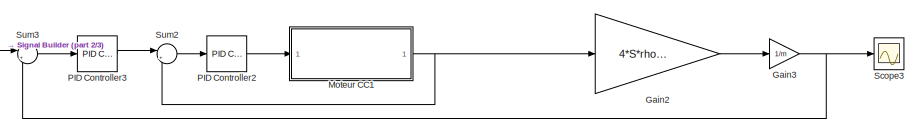
[diagram: root canvas - part 1/3, top center region]
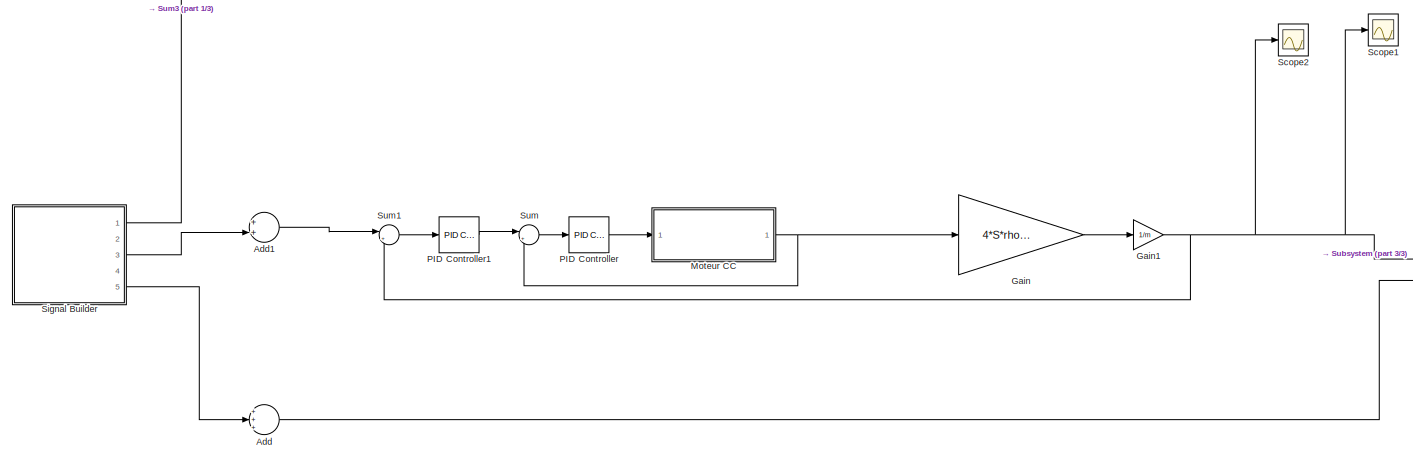
[diagram: root canvas - part 2/3, bottom center region]
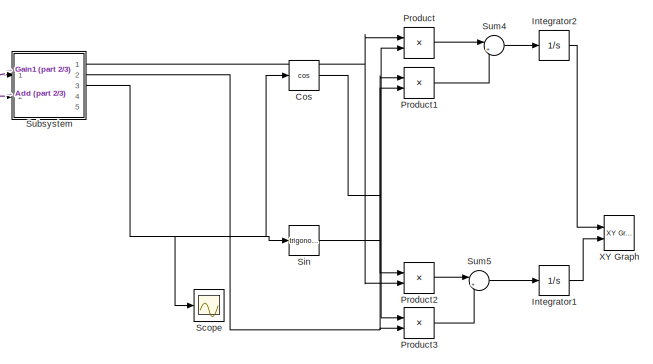
[diagram: root canvas - part 3/3, bottom right region]
MODEL slx_8b67d9d54046
KIND model
CONFIG AbsTol = auto
CONFIG EnableMultiTasking = off
CONFIG FixedStep = auto
CONFIG MaxStep = 1e-2
CONFIG MinStep = auto
CONFIG RelTol = 1e-3
CONFIG SampleTimeConstraint = Unconstrained
CONFIG Solver = VariableStepAuto
CONFIG SolverName = VariableStepAuto
CONFIG StartTime = 0.0
CONFIG StopTime = 20
BLOCK [Sum] Add
  InputSameDT = off
  Inputs = +++
  OutDataTypeStr = Inherit: Inherit via internal rule
  Ports = [3, 1]
  SaturateOnIntegerOverflow = off
BLOCK [Sum] Add1
  InputSameDT = off
  OutDataTypeStr = Inherit: Inherit via internal rule
  Ports = [2, 1]
  SaturateOnIntegerOverflow = off
BLOCK [Trigonometry] Cos
  Operator = cos
  Ports = [1, 1]
BLOCK [Gain] Gain
  Gain = 4*S*rho*L*L*Cz*3000
  OutDataTypeStr = Inherit: Inherit via internal rule
  ParamDataTypeStr = Inherit: Inherit via internal rule
  SaturateOnIntegerOverflow = off
BLOCK [Gain] Gain1
  Gain = 1/m
  OutDataTypeStr = Inherit: Inherit via internal rule
  ParamDataTypeStr = Inherit: Inherit via internal rule
  SaturateOnIntegerOverflow = off
BLOCK [Gain] Gain2
  Gain = 4*S*rho*L*L*Cz*3000
  OutDataTypeStr = Inherit: Inherit via internal rule
  ParamDataTypeStr = Inherit: Inherit via internal rule
  SaturateOnIntegerOverflow = off
BLOCK [Gain] Gain3
  Gain = 1/m
  OutDataTypeStr = Inherit: Inherit via internal rule
  ParamDataTypeStr = Inherit: Inherit via internal rule
  SaturateOnIntegerOverflow = off
BLOCK [Integrator] Integrator1
  Ports = [1, 1]
BLOCK [Integrator] Integrator2
  Ports = [1, 1]
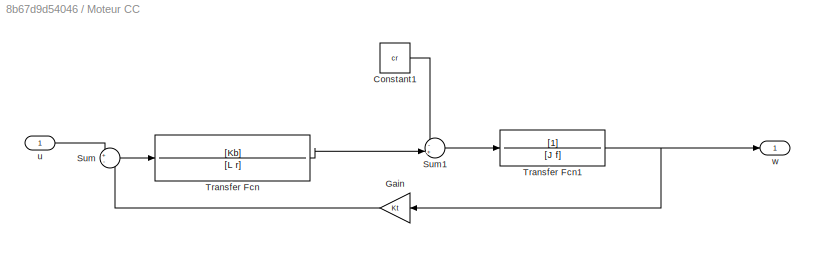
BLOCK [SubSystem] Moteur CC
  Ports = [1, 1]
  RequestExecContextInheritance = off
BLOCK [Constant] Moteur CC/Constant1
  Value = cr
BLOCK [Gain] Moteur CC/Gain
  Gain = Kt
  OutDataTypeStr = Inherit: Inherit via internal rule
  ParamDataTypeStr = Inherit: Inherit via internal rule
  SaturateOnIntegerOverflow = off
BLOCK [Sum] Moteur CC/Sum
  IconShape = round
  InputSameDT = off
  Inputs = +-
  OutDataTypeStr = Inherit: Inherit via internal rule
  Ports = [2, 1]
  SaturateOnIntegerOverflow = off
BLOCK [Sum] Moteur CC/Sum1
  IconShape = round
  InputSameDT = off
  Inputs = -+|
  OutDataTypeStr = Inherit: Inherit via internal rule
  Ports = [2, 1]
  SaturateOnIntegerOverflow = off
BLOCK [TransferFcn] Moteur CC/Transfer Fcn
  Denominator = [L r]
  Numerator = [Kb]
BLOCK [TransferFcn] Moteur CC/Transfer Fcn1
  Denominator = [J f]
BLOCK [Inport] Moteur CC/u
  IconDisplay = Port number
BLOCK [Outport] Moteur CC/w
  IconDisplay = Port number
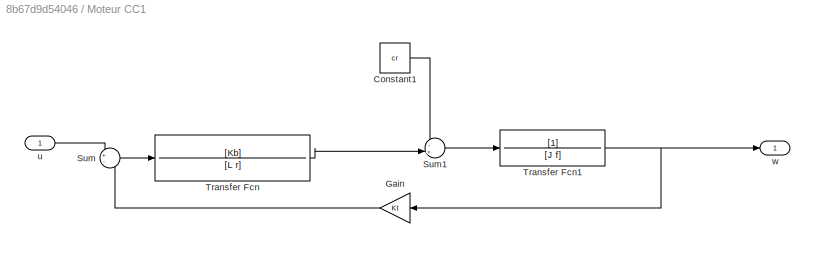
BLOCK [SubSystem] Moteur CC1
  Ports = [1, 1]
  RequestExecContextInheritance = off
BLOCK [Constant] Moteur CC1/Constant1
  Value = cr
BLOCK [Gain] Moteur CC1/Gain
  Gain = Kt
  OutDataTypeStr = Inherit: Inherit via internal rule
  ParamDataTypeStr = Inherit: Inherit via internal rule
  SaturateOnIntegerOverflow = off
BLOCK [Sum] Moteur CC1/Sum
  IconShape = round
  InputSameDT = off
  Inputs = +-
  OutDataTypeStr = Inherit: Inherit via internal rule
  Ports = [2, 1]
  SaturateOnIntegerOverflow = off
BLOCK [Sum] Moteur CC1/Sum1
  IconShape = round
  InputSameDT = off
  Inputs = -+|
  OutDataTypeStr = Inherit: Inherit via internal rule
  Ports = [2, 1]
  SaturateOnIntegerOverflow = off
BLOCK [TransferFcn] Moteur CC1/Transfer Fcn
  Denominator = [L r]
  Numerator = [Kb]
BLOCK [TransferFcn] Moteur CC1/Transfer Fcn1
  Denominator = [J f]
BLOCK [Inport] Moteur CC1/u
  IconDisplay = Port number
BLOCK [Outport] Moteur CC1/w
  IconDisplay = Port number
BLOCK [Reference] PID Controller  REF=simulink/Continuous/PID Controller
  Ports = [1, 1]
  SourceBlock = simulink/Continuous/PID Controller
  SourceProductBaseCode = SL
  SourceProductName = Simulink
  SourceType = PID 1dof
BLOCK [Reference] PID Controller1  REF=simulink/Continuous/PID Controller
  Ports = [1, 1]
  SourceBlock = simulink/Continuous/PID Controller
  SourceProductBaseCode = SL
  SourceProductName = Simulink
  SourceType = PID 1dof
BLOCK [Reference] PID Controller2  REF=simulink/Continuous/PID Controller
  Ports = [1, 1]
  SourceBlock = simulink/Continuous/PID Controller
  SourceProductBaseCode = SL
  SourceProductName = Simulink
  SourceType = PID 1dof
BLOCK [Reference] PID Controller3  REF=simulink/Continuous/PID Controller
  Ports = [1, 1]
  SourceBlock = simulink/Continuous/PID Controller
  SourceProductBaseCode = SL
  SourceProductName = Simulink
  SourceType = PID 1dof
BLOCK [Product] Product
  InputSameDT = off
  OutDataTypeStr = Inherit: Inherit via internal rule
  Ports = [2, 1]
  RndMeth = Floor
  SaturateOnIntegerOverflow = off
BLOCK [Product] Product1
  InputSameDT = off
  OutDataTypeStr = Inherit: Inherit via internal rule
  Ports = [2, 1]
  RndMeth = Floor
  SaturateOnIntegerOverflow = off
BLOCK [Product] Product2
  InputSameDT = off
  OutDataTypeStr = Inherit: Inherit via internal rule
  Ports = [2, 1]
  RndMeth = Floor
  SaturateOnIntegerOverflow = off
BLOCK [Product] Product3
  InputSameDT = off
  OutDataTypeStr = Inherit: Inherit via internal rule
  Ports = [2, 1]
  RndMeth = Floor
  SaturateOnIntegerOverflow = off
BLOCK [Scope] Scope
  Floating = off
  NumInputPorts = 1
  Ports = [1]
  ScopeSpecificationString = Simulink.scopes.TimeScopeBlockCfg('CurrentConfiguration', extmgr.ConfigurationSet(extmgr.Configuration('Core','General UI',true),extmgr.Configuration('Core','Source UI',true),extmgr.Configuration('Sources','WiredSimulink',true),extmgr.Configuration('Visuals','Time Domain',true,'SerializedDisplays',{struct('MinYLimReal','-32009.91576','MaxYLimReal','9044.22511','YLabelReal','','MinYLimMag','   0.00...<+1390ch>
BLOCK [Scope] Scope1
  Floating = off
  NumInputPorts = 1
  Ports = [1]
  ScopeSpecificationString = Simulink.scopes.TimeScopeBlockCfg('CurrentConfiguration', extmgr.ConfigurationSet(extmgr.Configuration('Core','General UI',true),extmgr.Configuration('Core','Source UI',true),extmgr.Configuration('Sources','WiredSimulink',true,'DataLoggingVariableName','ScopeData1'),extmgr.Configuration('Visuals','Time Domain',true,'SerializedDisplays',{struct('MinYLimReal','-0.12427','MaxYLimReal','0.1641','YLabe...<+1437ch>
BLOCK [Scope] Scope2
  Floating = off
  NumInputPorts = 1
  Ports = [1]
  ScopeSpecificationString = Simulink.scopes.TimeScopeBlockCfg('CurrentConfiguration', extmgr.ConfigurationSet(extmgr.Configuration('Core','General UI',true),extmgr.Configuration('Core','Source UI',true),extmgr.Configuration('Sources','WiredSimulink',true,'DataLoggingVariableName','ScopeData2'),extmgr.Configuration('Visuals','Time Domain',true,'SerializedDisplays',{struct('MinYLimReal','-104.22651','MaxYLimReal','47.16824','Y...<+1457ch>
BLOCK [Scope] Scope3
  Floating = off
  NumInputPorts = 1
  Ports = [1]
  ScopeSpecificationString = Simulink.scopes.TimeScopeBlockCfg('CurrentConfiguration', extmgr.ConfigurationSet(extmgr.Configuration('Core','General UI',true),extmgr.Configuration('Core','Source UI',true),extmgr.Configuration('Sources','WiredSimulink',true,'DataLoggingVariableName','ScopeData3'),extmgr.Configuration('Visuals','Time Domain',true,'SerializedDisplays',{struct('MinYLimReal','-104.22651','MaxYLimReal','47.16824','Y...<+1457ch>
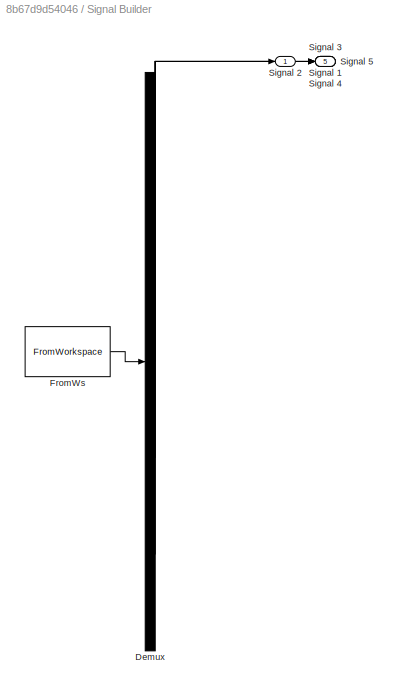
BLOCK [SubSystem] Signal Builder
  ClipboardFcn = sigbuilder_block('clipboard');
  CloseFcn = sigbuilder_block('close');
  ContinueFcn = sigbuilder_block('continue');
  CopyFcn = sigbuilder_block('copy');
  DeleteFcn = sigbuilder_block('delete');
  LoadFcn = sigbuilder_block('load');
  MaskHideContents = on
  ModelCloseFcn = sigbuilder_block('modelClose');
  NameChangeFcn = sigbuilder_block('namechange');
  OpenFcn = sigbuilder_block('open',[150 54.6 550.8 400.2 ]);
  PauseFcn = sigbuilder_block('pause');
  Ports = [0, 5]
  PreSaveFcn = sigbuilder_block('preSave');
  RequestExecContextInheritance = off
  StartFcn = sigbuilder_block('start');
  StopFcn = sigbuilder_block('stop');
  Tag = STV Subsys
BLOCK [Demux] Signal Builder/Demux
  Outputs = 5
  Ports = [1, 5]
  Tag = STV Demux
BLOCK [FromWorkspace] Signal Builder/FromWs
  SampleTime = 0
  Tag = STV FromWs
  VariableName = tuvar
  ZeroCross = on
BLOCK [Outport] Signal Builder/Signal 1
  IconDisplay = Port number
  Port = 2
  Tag = STV Outport
BLOCK [Outport] Signal Builder/Signal 2
  IconDisplay = Port number
  Tag = STV Outport
BLOCK [Outport] Signal Builder/Signal 3
  IconDisplay = Port number
  Port = 3
  Tag = STV Outport
BLOCK [Outport] Signal Builder/Signal 4
  IconDisplay = Port number
  Port = 4
  Tag = STV Outport
BLOCK [Outport] Signal Builder/Signal 5
  IconDisplay = Port number
  Port = 5
  Tag = STV Outport
BLOCK [Trigonometry] Sin
  Ports = [1, 1]
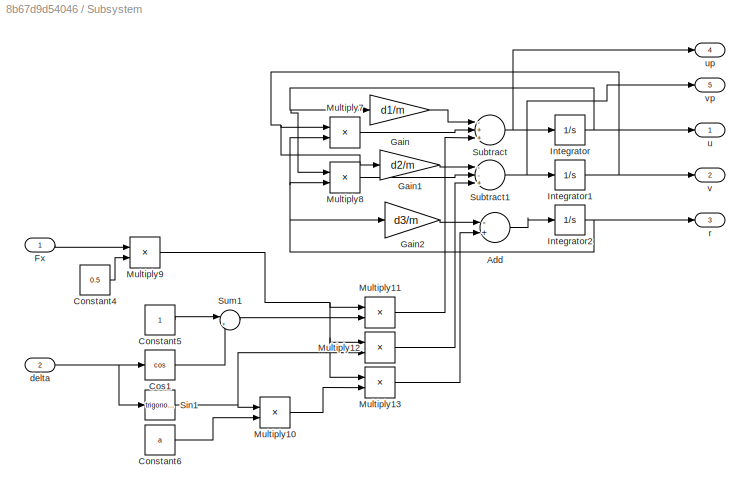
BLOCK [SubSystem] Subsystem
  Ports = [2, 5]
  RequestExecContextInheritance = off
BLOCK [Sum] Subsystem/Add
  InputSameDT = off
  Inputs = -+
  OutDataTypeStr = Inherit: Inherit via internal rule
  Ports = [2, 1]
  SaturateOnIntegerOverflow = off
BLOCK [Constant] Subsystem/Constant4
  Value = 0.5
BLOCK [Constant] Subsystem/Constant5
BLOCK [Constant] Subsystem/Constant6
  Value = a
BLOCK [Trigonometry] Subsystem/Cos1
  Operator = cos
  Ports = [1, 1]
BLOCK [Inport] Subsystem/Fx
  IconDisplay = Port number
BLOCK [Gain] Subsystem/Gain
  Gain = d1/m
  OutDataTypeStr = Inherit: Inherit via internal rule
  ParamDataTypeStr = Inherit: Inherit via internal rule
  SaturateOnIntegerOverflow = off
BLOCK [Gain] Subsystem/Gain1
  Gain = d2/m
  OutDataTypeStr = Inherit: Inherit via internal rule
  ParamDataTypeStr = Inherit: Inherit via internal rule
  SaturateOnIntegerOverflow = off
BLOCK [Gain] Subsystem/Gain2
  Gain = d3/m
  OutDataTypeStr = Inherit: Inherit via internal rule
  ParamDataTypeStr = Inherit: Inherit via internal rule
  SaturateOnIntegerOverflow = off
BLOCK [Integrator] Subsystem/Integrator
  Ports = [1, 1]
BLOCK [Integrator] Subsystem/Integrator1
  Ports = [1, 1]
BLOCK [Integrator] Subsystem/Integrator2
  Ports = [1, 1]
BLOCK [Product] Subsystem/Multiply10
  InputSameDT = off
  OutDataTypeStr = Inherit: Inherit via internal rule
  Ports = [2, 1]
  RndMeth = Floor
  SaturateOnIntegerOverflow = off
BLOCK [Product] Subsystem/Multiply11
  InputSameDT = off
  OutDataTypeStr = Inherit: Inherit via internal rule
  Ports = [2, 1]
  RndMeth = Floor
  SaturateOnIntegerOverflow = off
BLOCK [Product] Subsystem/Multiply12
  InputSameDT = off
  OutDataTypeStr = Inherit: Inherit via internal rule
  Ports = [2, 1]
  RndMeth = Floor
  SaturateOnIntegerOverflow = off
BLOCK [Product] Subsystem/Multiply13
  InputSameDT = off
  OutDataTypeStr = Inherit: Inherit via internal rule
  Ports = [2, 1]
  RndMeth = Floor
  SaturateOnIntegerOverflow = off
BLOCK [Product] Subsystem/Multiply7
  InputSameDT = off
  OutDataTypeStr = Inherit: Inherit via internal rule
  Ports = [2, 1]
  RndMeth = Floor
  SaturateOnIntegerOverflow = off
BLOCK [Product] Subsystem/Multiply8
  InputSameDT = off
  OutDataTypeStr = Inherit: Inherit via internal rule
  Ports = [2, 1]
  RndMeth = Floor
  SaturateOnIntegerOverflow = off
BLOCK [Product] Subsystem/Multiply9
  InputSameDT = off
  OutDataTypeStr = Inherit: Inherit via internal rule
  Ports = [2, 1]
  RndMeth = Floor
  SaturateOnIntegerOverflow = off
BLOCK [Trigonometry] Subsystem/Sin1
  Ports = [1, 1]
BLOCK [Sum] Subsystem/Subtract
  InputSameDT = off
  Inputs = -++
  OutDataTypeStr = Inherit: Inherit via internal rule
  Ports = [3, 1]
  SaturateOnIntegerOverflow = off
BLOCK [Sum] Subsystem/Subtract1
  InputSameDT = off
  Inputs = --+
  OutDataTypeStr = Inherit: Inherit via internal rule
  Ports = [3, 1]
  SaturateOnIntegerOverflow = off
BLOCK [Sum] Subsystem/Sum1
  IconShape = round
  InputSameDT = off
  Inputs = |++
  OutDataTypeStr = Inherit: Inherit via internal rule
  Ports = [2, 1]
  SaturateOnIntegerOverflow = off
BLOCK [Inport] Subsystem/delta
  IconDisplay = Port number
  Port = 2
BLOCK [Outport] Subsystem/r
  IconDisplay = Port number
  Port = 3
BLOCK [Outport] Subsystem/u
  IconDisplay = Port number
BLOCK [Outport] Subsystem/up
  IconDisplay = Port number
  Port = 4
BLOCK [Outport] Subsystem/v
  IconDisplay = Port number
  Port = 2
BLOCK [Outport] Subsystem/vp
  IconDisplay = Port number
  Port = 5
BLOCK [Sum] Sum
  IconShape = round
  InputSameDT = off
  Inputs = |+-
  OutDataTypeStr = Inherit: Inherit via internal rule
  Ports = [2, 1]
  SaturateOnIntegerOverflow = off
BLOCK [Sum] Sum1
  IconShape = round
  InputSameDT = off
  Inputs = |+-
  OutDataTypeStr = Inherit: Inherit via internal rule
  Ports = [2, 1]
  SaturateOnIntegerOverflow = off
BLOCK [Sum] Sum2
  IconShape = round
  InputSameDT = off
  Inputs = |+-
  OutDataTypeStr = Inherit: Inherit via internal rule
  Ports = [2, 1]
  SaturateOnIntegerOverflow = off
BLOCK [Sum] Sum3
  IconShape = round
  InputSameDT = off
  Inputs = |+-
  OutDataTypeStr = Inherit: Inherit via internal rule
  Ports = [2, 1]
  SaturateOnIntegerOverflow = off
BLOCK [Sum] Sum4
  IconShape = round
  InputSameDT = off
  Inputs = |+-
  OutDataTypeStr = Inherit: Inherit via internal rule
  Ports = [2, 1]
  SaturateOnIntegerOverflow = off
BLOCK [Sum] Sum5
  IconShape = round
  InputSameDT = off
  Inputs = |++
  OutDataTypeStr = Inherit: Inherit via internal rule
  Ports = [2, 1]
  SaturateOnIntegerOverflow = off
BLOCK [Reference] XY Graph  REF=simulink/Sinks/XY Graph
  Ports = [2]
  SourceBlock = simulink/Sinks/XY Graph
  SourceProductBaseCode = SL
  SourceProductName = Simulink
  SourceType = XY scope.
LINE Add1:1 -> Sum1:1
LINE Add:1 -> Subsystem:2
NET Cos:1 -> Product3:1, Product:2
NET Gain1:1 -> Scope1:1, Scope2:1, Subsystem:1, Sum1:2
LINE Gain2:1 -> Gain3:1
NET Gain3:1 -> Scope3:1, Sum3:2
LINE Gain:1 -> Gain1:1
LINE Integrator1:1 -> XY Graph:2
LINE Integrator2:1 -> XY Graph:1
LINE Moteur CC/Constant1:1 -> Moteur CC/Sum1:1
LINE Moteur CC/Gain:1 -> Moteur CC/Sum:2
LINE Moteur CC/Sum1:1 -> Moteur CC/Transfer Fcn1:1
LINE Moteur CC/Sum:1 -> Moteur CC/Transfer Fcn:1
NET Moteur CC/Transfer Fcn1:1 -> Moteur CC/Gain:1, Moteur CC/w:1
LINE Moteur CC/Transfer Fcn:1 -> Moteur CC/Sum1:2
LINE Moteur CC/u:1 -> Moteur CC/Sum:1
LINE Moteur CC1/Constant1:1 -> Moteur CC1/Sum1:1
LINE Moteur CC1/Gain:1 -> Moteur CC1/Sum:2
LINE Moteur CC1/Sum1:1 -> Moteur CC1/Transfer Fcn1:1
LINE Moteur CC1/Sum:1 -> Moteur CC1/Transfer Fcn:1
NET Moteur CC1/Transfer Fcn1:1 -> Moteur CC1/Gain:1, Moteur CC1/w:1
LINE Moteur CC1/Transfer Fcn:1 -> Moteur CC1/Sum1:2
LINE Moteur CC1/u:1 -> Moteur CC1/Sum:1
NET Moteur CC1:1 -> Gain2:1, Sum2:2
NET Moteur CC:1 -> Gain:1, Sum:2
LINE PID Controller1:1 -> Sum:1
LINE PID Controller2:1 -> Moteur CC1:1
LINE PID Controller3:1 -> Sum2:1
LINE PID Controller:1 -> Moteur CC:1
LINE Product1:1 -> Sum4:2
LINE Product2:1 -> Sum5:1
LINE Product3:1 -> Sum5:2
LINE Product:1 -> Sum4:1
LINE Signal Builder:1 -> Sum3:1
LINE Signal Builder:3 -> Add1:2
LINE Signal Builder:5 -> Add:2
NET Sin:1 -> Product1:1, Product2:1
LINE Subsystem/Add:1 -> Subsystem/Integrator2:1
LINE Subsystem/Constant4:1 -> Subsystem/Multiply9:2
LINE Subsystem/Constant5:1 -> Subsystem/Sum1:1
LINE Subsystem/Constant6:1 -> Subsystem/Multiply10:2
LINE Subsystem/Cos1:1 -> Subsystem/Sum1:2
LINE Subsystem/Fx:1 -> Subsystem/Multiply9:1
LINE Subsystem/Gain1:1 -> Subsystem/Subtract1:1
LINE Subsystem/Gain2:1 -> Subsystem/Add:1
LINE Subsystem/Gain:1 -> Subsystem/Subtract:1
NET Subsystem/Integrator1:1 -> Subsystem/Gain1:1, Subsystem/Multiply7:1, Subsystem/v:1
NET Subsystem/Integrator2:1 -> Subsystem/Gain2:1, Subsystem/Multiply7:2, Subsystem/Multiply8:2, Subsystem/r:1
NET Subsystem/Integrator:1 -> Subsystem/Gain:1, Subsystem/Multiply8:1, Subsystem/u:1
LINE Subsystem/Multiply10:1 -> Subsystem/Multiply13:2
LINE Subsystem/Multiply11:1 -> Subsystem/Subtract:3
LINE Subsystem/Multiply12:1 -> Subsystem/Subtract1:3
LINE Subsystem/Multiply13:1 -> Subsystem/Add:2
LINE Subsystem/Multiply7:1 -> Subsystem/Subtract:2
LINE Subsystem/Multiply8:1 -> Subsystem/Subtract1:2
NET Subsystem/Multiply9:1 -> Subsystem/Multiply11:1, Subsystem/Multiply12:1, Subsystem/Multiply13:1
NET Subsystem/Sin1:1 -> Subsystem/Multiply10:1, Subsystem/Multiply12:2
NET Subsystem/Subtract1:1 -> Subsystem/Integrator1:1, Subsystem/vp:1
NET Subsystem/Subtract:1 -> Subsystem/Integrator:1, Subsystem/up:1
LINE Subsystem/Sum1:1 -> Subsystem/Multiply11:2
NET Subsystem/delta:1 -> Subsystem/Cos1:1, Subsystem/Sin1:1
NET Subsystem:1 -> Product2:2, Product:1
NET Subsystem:2 -> Product1:2, Product3:2
NET Subsystem:3 -> Cos:1, Scope:1, Sin:1
LINE Sum1:1 -> PID Controller1:1
LINE Sum2:1 -> PID Controller2:1
LINE Sum3:1 -> PID Controller3:1
LINE Sum4:1 -> Integrator2:1
LINE Sum5:1 -> Integrator1:1
LINE Sum:1 -> PID Controller:1
note: NET lines group one-source signal fan-out (src -> all destinations, sorted); 1:1 wires keep LINE
